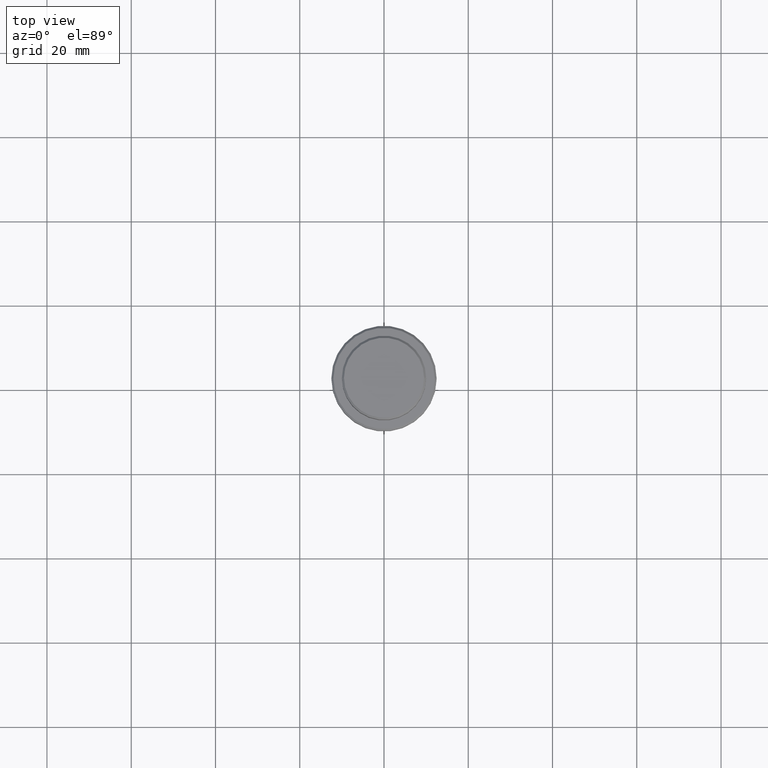
[diagram: clean part render]
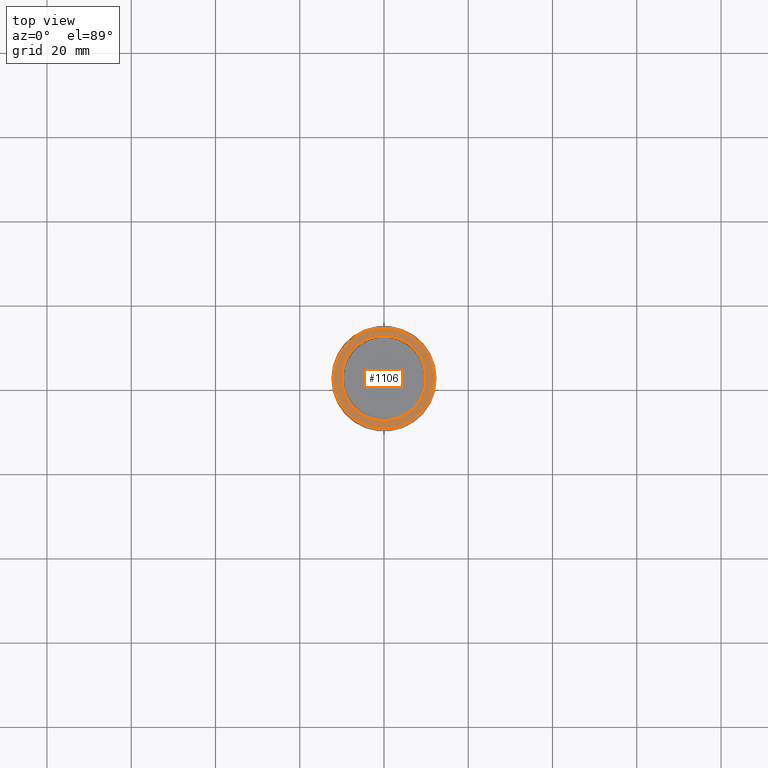
[diagram: same view with one face highlighted and labeled with its STEP entity id]
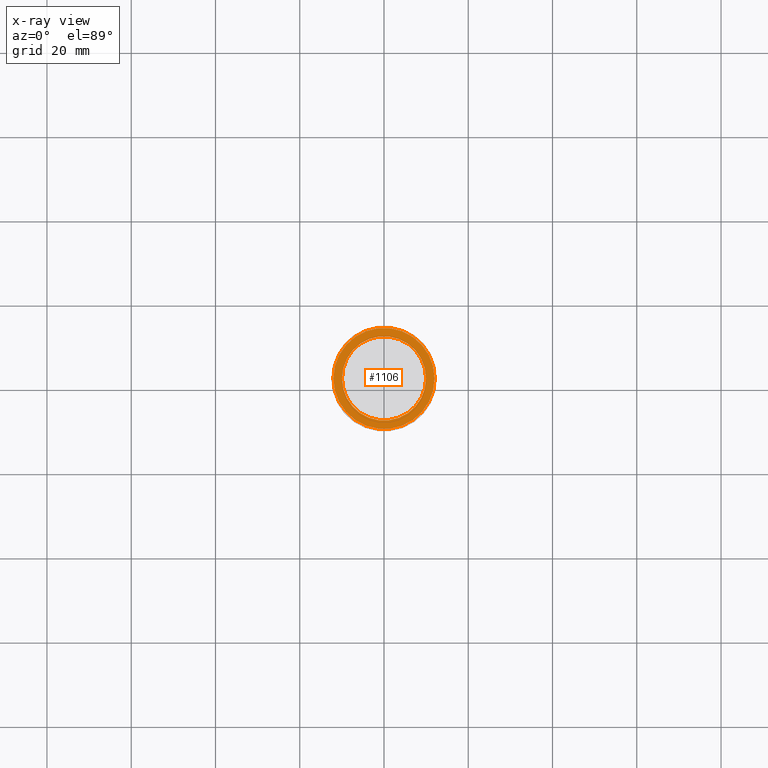
[diagram: x-ray of the same camera — body ghosted, the highlighted face saturated]
A machine part, top view. The second image highlights one B-rep face of the part: STEP entity #1106.
The next image is the same camera in x-ray: the body ghosted, the highlighted face saturated — about 0% of this face is hidden behind the body in this view.
In plain terms, the highlighted planar face has unit normal (0, -0, 1).
Its self-contained STEP definition (entity closure, byte-faithful):
#55 = ORIENTED_EDGE ( 'NONE', *, *, #993, .T. ) ;
#75 = ORIENTED_EDGE ( 'NONE', *, *, #640, .T. ) ;
#135 = AXIS2_PLACEMENT_3D ( 'NONE', #425, #523, #1156 ) ;
#157 = DIRECTION ( 'NONE',  ( 1.000000000000000000, 0.000000000000000000, 0.000000000000000000 ) ) ;
#191 = VERTEX_POINT ( 'NONE', #1069 ) ;
#200 = CARTESIAN_POINT ( 'NONE',  ( 0.000000000000000000, 9.499999999999992895, -9.000000000000000000 ) ) ;
#202 = CIRCLE ( 'NONE', #135, 9.999999999999992895 ) ;
#274 = VERTEX_POINT ( 'NONE', #1251 ) ;
#290 = DIRECTION ( 'NONE',  ( 0.000000000000000000, -0.000000000000000000, 1.000000000000000000 ) ) ;
#378 = DIRECTION ( 'NONE',  ( 1.000000000000000000, 0.000000000000000000, 0.000000000000000000 ) ) ;
#410 = ORIENTED_EDGE ( 'NONE', *, *, #626, .T. ) ;
#425 = CARTESIAN_POINT ( 'NONE',  ( 0.000000000000000000, 0.000000000000000000, -9.000000000000000000 ) ) ;
#476 = DIRECTION ( 'NONE',  ( 0.000000000000000000, 0.000000000000000000, -1.000000000000000000 ) ) ;
#523 = DIRECTION ( 'NONE',  ( 0.000000000000000000, 0.000000000000000000, -1.000000000000000000 ) ) ;
#531 = EDGE_CURVE ( 'NONE', #191, #875, #911, .T. ) ;
#543 = AXIS2_PLACEMENT_3D ( 'NONE', #858, #847, #1393 ) ;
#618 = DIRECTION ( 'NONE',  ( 1.000000000000000000, 0.000000000000000000, 0.000000000000000000 ) ) ;
#626 = EDGE_CURVE ( 'NONE', #274, #774, #887, .T. ) ;
#634 = FACE_BOUND ( 'NONE', #1391, .T. ) ;
#640 = EDGE_CURVE ( 'NONE', #875, #191, #202, .T. ) ;
#656 = CARTESIAN_POINT ( 'NONE',  ( 12.00000000000001066, 1.500192328955508326E-15, -9.000000000000000000 ) ) ;
#667 = ORIENTED_EDGE ( 'NONE', *, *, #531, .T. ) ;
#693 = EDGE_LOOP ( 'NONE', ( #410, #55 ) ) ;
#713 = CARTESIAN_POINT ( 'NONE',  ( 9.999999999999992895, 0.000000000000000000, -9.000000000000000000 ) ) ;
#774 = VERTEX_POINT ( 'NONE', #656 ) ;
#787 = AXIS2_PLACEMENT_3D ( 'NONE', #1022, #1131, #157 ) ;
#847 = DIRECTION ( 'NONE',  ( -0.000000000000000000, -0.000000000000000000, 1.000000000000000000 ) ) ;
#858 = CARTESIAN_POINT ( 'NONE',  ( 0.000000000000000000, 0.000000000000000000, -9.000000000000000000 ) ) ;
#875 = VERTEX_POINT ( 'NONE', #713 ) ;
#887 = CIRCLE ( 'NONE', #543, 12.00000000000001066 ) ;
#911 = CIRCLE ( 'NONE', #999, 9.999999999999992895 ) ;
#950 = PLANE ( 'NONE',  #1304 ) ;
#993 = EDGE_CURVE ( 'NONE', #774, #274, #1150, .T. ) ;
#999 = AXIS2_PLACEMENT_3D ( 'NONE', #1348, #476, #378 ) ;
#1022 = CARTESIAN_POINT ( 'NONE',  ( 0.000000000000000000, 0.000000000000000000, -9.000000000000000000 ) ) ;
#1069 = CARTESIAN_POINT ( 'NONE',  ( -9.999999999999992895, 1.224646799147352468E-15, -9.000000000000000000 ) ) ;
#1106 = ADVANCED_FACE ( 'NONE', ( #1171, #634 ), #950, .T. ) ;
#1131 = DIRECTION ( 'NONE',  ( -0.000000000000000000, -0.000000000000000000, 1.000000000000000000 ) ) ;
#1150 = CIRCLE ( 'NONE', #787, 12.00000000000001066 ) ;
#1156 = DIRECTION ( 'NONE',  ( 1.000000000000000000, 0.000000000000000000, 0.000000000000000000 ) ) ;
#1171 = FACE_OUTER_BOUND ( 'NONE', #693, .T. ) ;
#1251 = CARTESIAN_POINT ( 'NONE',  ( -12.00000000000001066, 0.000000000000000000, -9.000000000000000000 ) ) ;
#1304 = AXIS2_PLACEMENT_3D ( 'NONE', #200, #290, #618 ) ;
#1348 = CARTESIAN_POINT ( 'NONE',  ( 0.000000000000000000, 0.000000000000000000, -9.000000000000000000 ) ) ;
#1391 = EDGE_LOOP ( 'NONE', ( #75, #667 ) ) ;
#1393 = DIRECTION ( 'NONE',  ( 1.000000000000000000, 0.000000000000000000, 0.000000000000000000 ) ) ;